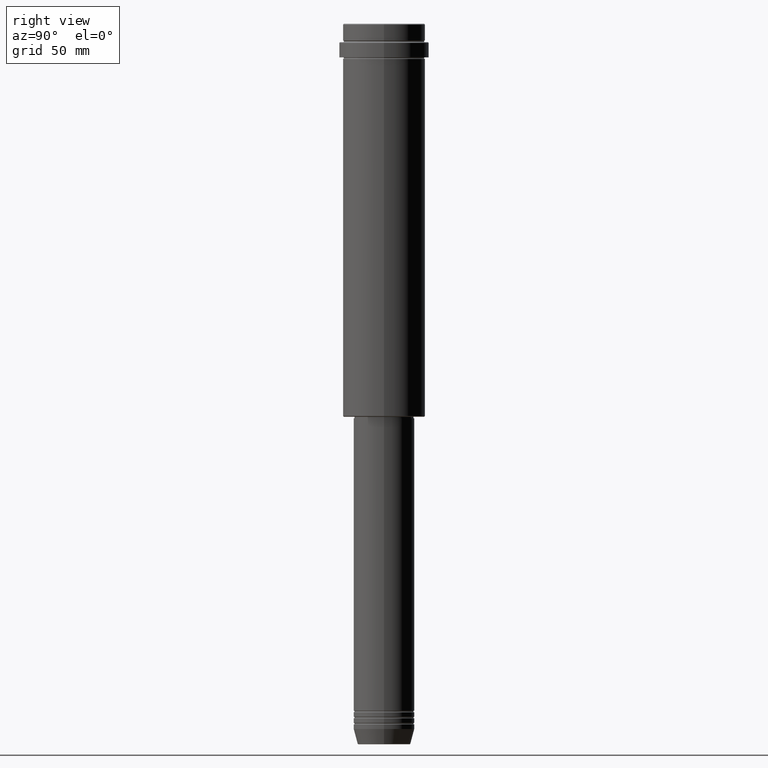
[diagram: clean part render]
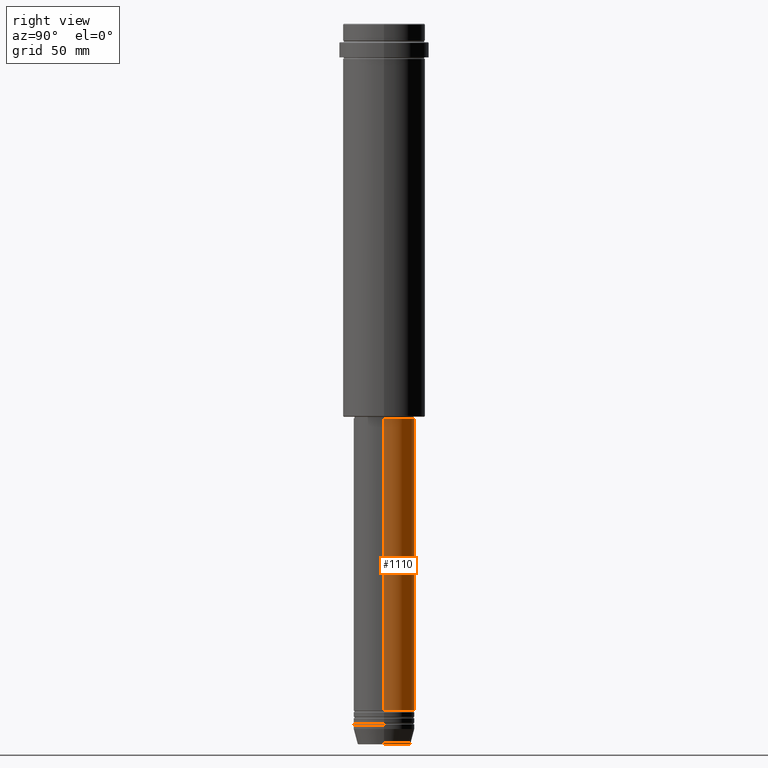
[diagram: same view with one face highlighted and labeled with its STEP entity id]
A machine part, right view. The second image highlights one B-rep face of the part: STEP entity #1110.
In plain terms, the highlighted cylindrical surface (edge-blend (fillet) strip) has radius 20 mm, axis along (-0, -0, 1).
Its self-contained STEP definition (entity closure, byte-faithful):
#70 = FACE_OUTER_BOUND ( 'NONE', #787, .T. ) ;
#108 = AXIS2_PLACEMENT_3D ( 'NONE', #915, #238, #1341 ) ;
#139 = VERTEX_POINT ( 'NONE', #278 ) ;
#238 = DIRECTION ( 'NONE',  ( -0.000000000000000000, -0.000000000000000000, 1.000000000000000000 ) ) ;
#249 = DIRECTION ( 'NONE',  ( 1.000000000000000000, 0.000000000000000000, 0.000000000000000000 ) ) ;
#258 = ORIENTED_EDGE ( 'NONE', *, *, #955, .F. ) ;
#278 = CARTESIAN_POINT ( 'NONE',  ( 20.00000000000000000, 0.000000000000000000, -450.9999999999998295 ) ) ;
#351 = VECTOR ( 'NONE', #1106, 1000.000000000000000 ) ;
#374 = CARTESIAN_POINT ( 'NONE',  ( 0.000000000000000000, 0.000000000000000000, -450.9999999999998295 ) ) ;
#377 = CARTESIAN_POINT ( 'NONE',  ( -20.00000000000000000, 2.449293598294706513E-15, -450.9999999999998295 ) ) ;
#413 = EDGE_CURVE ( 'NONE', #1265, #1219, #1187, .T. ) ;
#484 = DIRECTION ( 'NONE',  ( -0.000000000000000000, -0.000000000000000000, 1.000000000000000000 ) ) ;
#509 = AXIS2_PLACEMENT_3D ( 'NONE', #812, #699, #820 ) ;
#604 = EDGE_CURVE ( 'NONE', #139, #1265, #779, .T. ) ;
#649 = CARTESIAN_POINT ( 'NONE',  ( 20.00000000000000000, 0.000000000000000000, 0.000000000000000000 ) ) ;
#687 = AXIS2_PLACEMENT_3D ( 'NONE', #374, #484, #249 ) ;
#689 = CIRCLE ( 'NONE', #108, 20.00000000000000000 ) ;
#699 = DIRECTION ( 'NONE',  ( -0.000000000000000000, -0.000000000000000000, 1.000000000000000000 ) ) ;
#755 = ORIENTED_EDGE ( 'NONE', *, *, #413, .T. ) ;
#768 = VERTEX_POINT ( 'NONE', #1049 ) ;
#779 = CIRCLE ( 'NONE', #687, 20.00000000000000000 ) ;
#787 = EDGE_LOOP ( 'NONE', ( #1403, #755, #258, #868 ) ) ;
#793 = CARTESIAN_POINT ( 'NONE',  ( -20.00000000000000000, 2.449293598294706513E-15, -259.0000000000000000 ) ) ;
#801 = EDGE_CURVE ( 'NONE', #139, #768, #886, .T. ) ;
#812 = CARTESIAN_POINT ( 'NONE',  ( 0.000000000000000000, 0.000000000000000000, 0.000000000000000000 ) ) ;
#820 = DIRECTION ( 'NONE',  ( 1.000000000000000000, 0.000000000000000000, 0.000000000000000000 ) ) ;
#868 = ORIENTED_EDGE ( 'NONE', *, *, #801, .F. ) ;
#886 = LINE ( 'NONE', #649, #1100 ) ;
#915 = CARTESIAN_POINT ( 'NONE',  ( 0.000000000000000000, 0.000000000000000000, -259.0000000000000000 ) ) ;
#955 = EDGE_CURVE ( 'NONE', #768, #1219, #689, .T. ) ;
#1049 = CARTESIAN_POINT ( 'NONE',  ( 20.00000000000000000, 0.000000000000000000, -259.0000000000000000 ) ) ;
#1100 = VECTOR ( 'NONE', #1186, 1000.000000000000000 ) ;
#1106 = DIRECTION ( 'NONE',  ( -0.000000000000000000, -0.000000000000000000, 1.000000000000000000 ) ) ;
#1110 = ADVANCED_FACE ( 'NONE', ( #70 ), #1267, .T. ) ;
#1186 = DIRECTION ( 'NONE',  ( -0.000000000000000000, -0.000000000000000000, 1.000000000000000000 ) ) ;
#1187 = LINE ( 'NONE', #1309, #351 ) ;
#1219 = VERTEX_POINT ( 'NONE', #793 ) ;
#1265 = VERTEX_POINT ( 'NONE', #377 ) ;
#1267 = CYLINDRICAL_SURFACE ( 'NONE', #509, 20.00000000000000000 ) ;
#1309 = CARTESIAN_POINT ( 'NONE',  ( -20.00000000000000000, 2.449293598294706513E-15, 0.000000000000000000 ) ) ;
#1341 = DIRECTION ( 'NONE',  ( 1.000000000000000000, 0.000000000000000000, 0.000000000000000000 ) ) ;
#1403 = ORIENTED_EDGE ( 'NONE', *, *, #604, .T. ) ;